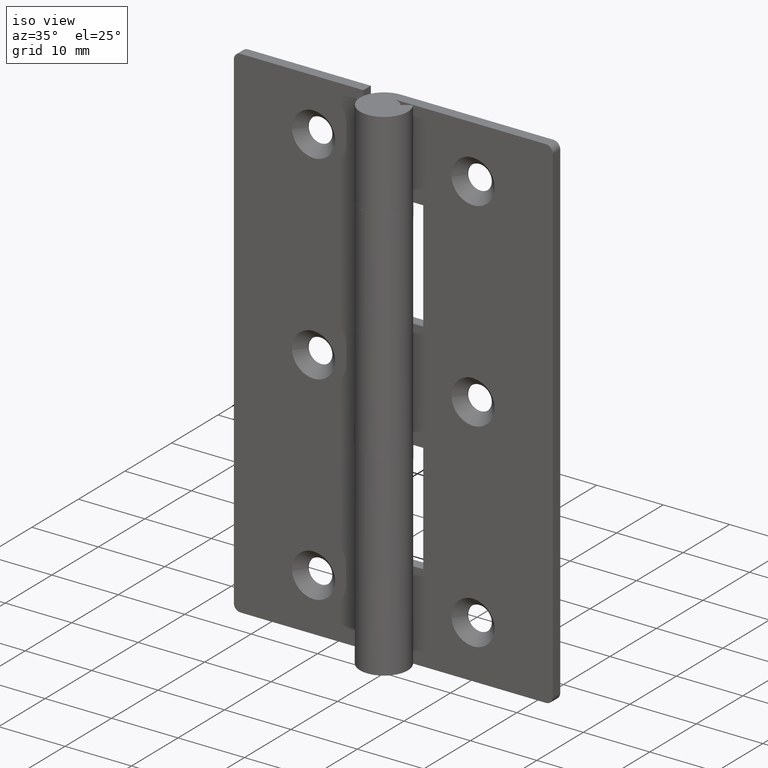
[diagram: clean part render]
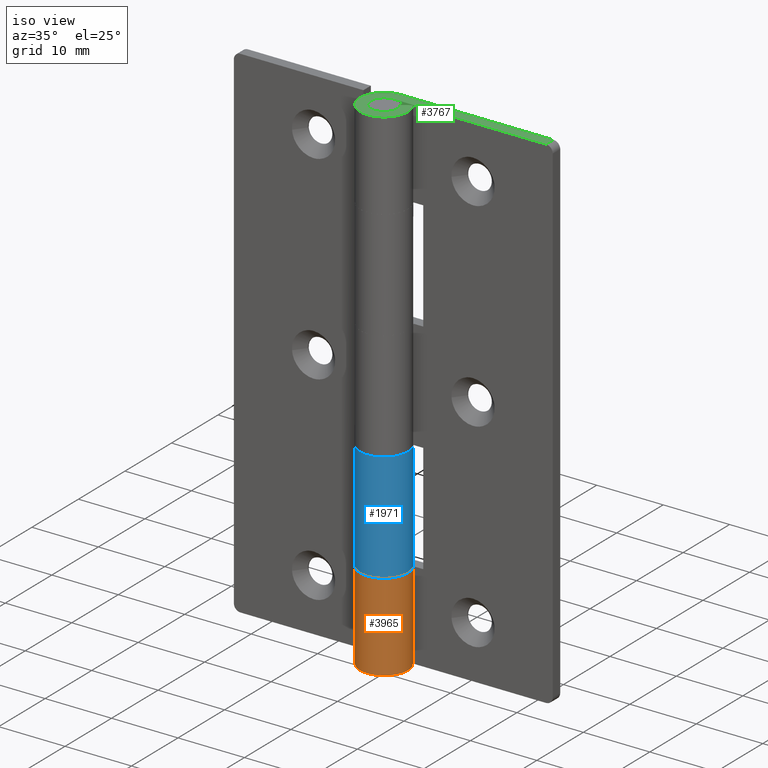
[diagram: same view with three faces highlighted in distinct colors, each labeled with its STEP entity id]
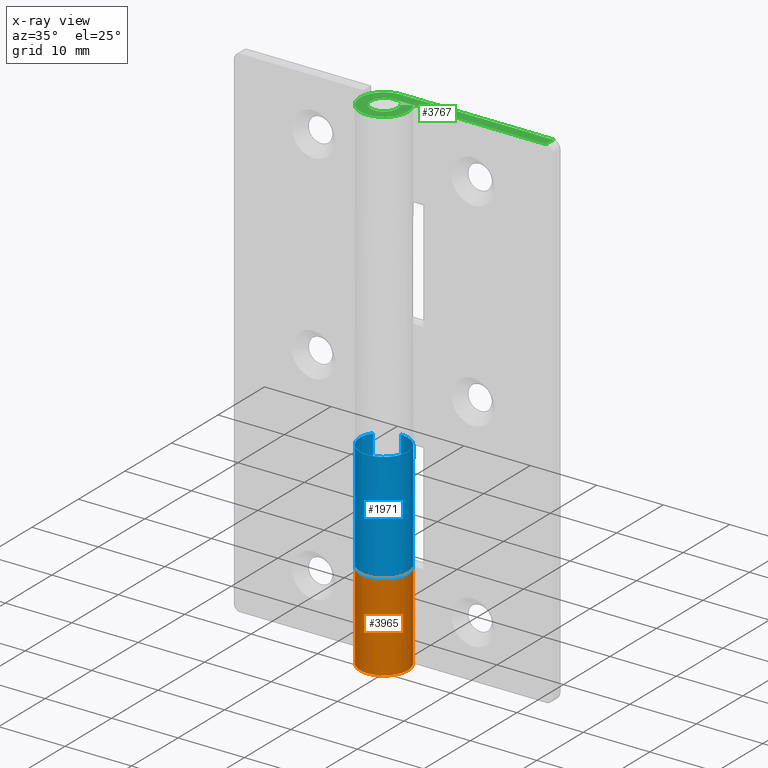
[diagram: x-ray of the same camera — body ghosted, the three highlighted faces saturated]
A machine part, iso view with three faces highlighted in distinct colors.
The next image is the same camera in x-ray (body ghosted, the three faces saturated) — at least one of them is partly hidden behind the body in this view.
Their STEP definitions:

[orange] entity #3965 — the highlighted face is a freeform B-spline surface patch.
#3338=CARTESIAN_POINT('',(0.0,3.599998000000000,13.250000000000000));
#3339=VERTEX_POINT('',#3338);
#3340=CARTESIAN_POINT('',(3.026136150274805,1.950000000000000,13.250000000000000));
#3341=VERTEX_POINT('',#3340);
#3342=CARTESIAN_POINT('',(0.0,3.599998000000000,13.250000000000000));
#3343=CARTESIAN_POINT('',(-2.797445801786442,3.599996574839753,13.250000000000005));
#3344=CARTESIAN_POINT('',(-3.488445646206987,0.889236523647995,13.250000000000000));
#3345=CARTESIAN_POINT('',(-4.179445490627532,-1.821523527543762,13.250000000000005));
#3346=CARTESIAN_POINT('',(-1.723368793961409,-3.160697125855820,13.250000000000000));
#3347=CARTESIAN_POINT('',(0.732707902704714,-4.499870724167879,13.250000000000005));
#3348=CARTESIAN_POINT('',(2.637063597806921,-2.450691853562209,13.250000000000000));
#3349=CARTESIAN_POINT('',(4.541419292909128,-0.401512982956539,13.250000000000005));
#3350=CARTESIAN_POINT('',(3.026136150274805,1.950000000000000,13.250000000000000));
#3358=(BOUNDED_CURVE()B_SPLINE_CURVE(2,(#3342,#3343,#3344,#3345,#3346,#3347,#3348,#3349,#3350),.UNSPECIFIED.,.F.,.U.)B_SPLINE_CURVE_WITH_KNOTS((3,2,2,2,3),(0.0,0.250000000000000,0.500000000000000,0.750000000000000,1.0),.UNSPECIFIED.)CURVE()GEOMETRIC_REPRESENTATION_ITEM()RATIONAL_B_SPLINE_CURVE((1.0,0.789623639943024,1.0,0.789623639943024,1.0,0.789623639943024,1.0,0.789623639943024,1.0))REPRESENTATION_ITEM(''));
#3359=EDGE_CURVE('',#3339,#3341,#3358,.T.);
#3403=CARTESIAN_POINT('',(0.003794732666214,3.599998000000000,13.250000000000000));
#3404=VERTEX_POINT('',#3403);
#3410=CARTESIAN_POINT('',(0.0,3.599998000000000,13.250000000000000));
#3411=CARTESIAN_POINT('',(0.003794732666214,3.599998000000000,13.250000000000000));
#3412=QUASI_UNIFORM_CURVE('',1,(#3410,#3411),.UNSPECIFIED.,.F.,.U.);
#3413=EDGE_CURVE('',#3339,#3404,#3412,.T.);
#3633=CARTESIAN_POINT('',(0.003794732666213,3.599998000000000,0.0));
#3634=VERTEX_POINT('',#3633);
#3669=CARTESIAN_POINT('',(3.026136150274805,1.950000000000000,0.0));
#3670=VERTEX_POINT('',#3669);
#3676=CARTESIAN_POINT('',(3.026136150274802,1.950000000000000,0.0));
#3677=CARTESIAN_POINT('',(4.541831416596925,-0.402153968316802,0.0));
#3678=CARTESIAN_POINT('',(2.636417691941326,-2.451387719969808,0.0));
#3679=CARTESIAN_POINT('',(0.731003967285728,-4.500621471622814,0.0));
#3680=CARTESIAN_POINT('',(-1.725034387729974,-3.159787391763736,0.0));
#3681=CARTESIAN_POINT('',(-4.181072742745673,-1.818953311904659,0.0));
#3682=CARTESIAN_POINT('',(-3.487741550518990,0.891997128237189,0.0));
#3683=CARTESIAN_POINT('',(-2.794410358292305,3.602947568379042,0.0));
#3684=CARTESIAN_POINT('',(0.003794732666212,3.599997999999999,0.0));
#3692=(BOUNDED_CURVE()B_SPLINE_CURVE(2,(#3676,#3677,#3678,#3679,#3680,#3681,#3682,#3683,#3684),.UNSPECIFIED.,.F.,.U.)B_SPLINE_CURVE_WITH_KNOTS((3,2,2,2,3),(0.0,0.250000000000000,0.500000000000000,0.750000000000000,1.0),.UNSPECIFIED.)CURVE()GEOMETRIC_REPRESENTATION_ITEM()RATIONAL_B_SPLINE_CURVE((1.0,0.789542785308570,1.0,0.789542785308570,1.0,0.789542785308570,1.0,0.789542785308570,1.0))REPRESENTATION_ITEM(''));
#3693=EDGE_CURVE('',#3670,#3634,#3692,.T.);
#3928=CARTESIAN_POINT('',(0.035210098515494,3.599827808237849,13.581250000000001));
#3929=CARTESIAN_POINT('',(0.035210098515494,3.599827808237849,-0.339531250000000));
#3930=CARTESIAN_POINT('',(-4.410207025893232,3.643308658775951,13.581250000000002));
#3931=CARTESIAN_POINT('',(-4.410207025893232,3.643308658775951,-0.339531250000000));
#3932=CARTESIAN_POINT('',(-3.528483524798904,-0.714005612878988,13.581250000000001));
#3933=CARTESIAN_POINT('',(-3.528483524798904,-0.714005612878988,-0.339531250000000));
#3934=CARTESIAN_POINT('',(-2.646760023704576,-5.071319884533927,13.581250000000002));
#3935=CARTESIAN_POINT('',(-2.646760023704576,-5.071319884533927,-0.339531250000000));
#3936=CARTESIAN_POINT('',(1.432015852811598,-3.302927579783769,13.581250000000001));
#3937=CARTESIAN_POINT('',(1.432015852811598,-3.302927579783769,-0.339531250000000));
#3938=CARTESIAN_POINT('',(5.510791729327772,-1.534535275033610,13.581250000000002));
#3939=CARTESIAN_POINT('',(5.510791729327772,-1.534535275033610,-0.339531250000000));
#3940=CARTESIAN_POINT('',(2.933017850327115,2.087440128401891,13.581250000000001));
#3941=CARTESIAN_POINT('',(2.933017850327115,2.087440128401891,-0.339531250000000));
#3949=(BOUNDED_SURFACE()B_SPLINE_SURFACE(1,2,((#3928,#3930,#3932,#3934,#3936,#3938,#3940),(#3929,#3931,#3933,#3935,#3937,#3939,#3941)),.UNSPECIFIED.,.F.,.F.,.U.)B_SPLINE_SURFACE_WITH_KNOTS((2,2),(3,2,2,3),(0.0,13.920781249999999),(0.0,6.868447670853503,13.736895341707010,20.605343012560510),.UNSPECIFIED.)GEOMETRIC_REPRESENTATION_ITEM()RATIONAL_B_SPLINE_SURFACE(((1.0,0.629320391049838,1.0,0.629320391049838,1.0,0.629320391049838,1.0),(1.0,0.629320391049838,1.0,0.629320391049838,1.0,0.629320391049838,1.0)))REPRESENTATION_ITEM('')SURFACE());
#3950=ORIENTED_EDGE('',*,*,#3413,.T.);
#3951=CARTESIAN_POINT('',(0.003794732666214,3.599998000000000,13.250000000000000));
#3952=CARTESIAN_POINT('',(0.003794732666213,3.599998000000000,0.0));
#3953=QUASI_UNIFORM_CURVE('',1,(#3951,#3952),.UNSPECIFIED.,.F.,.U.);
#3954=EDGE_CURVE('',#3404,#3634,#3953,.T.);
#3955=ORIENTED_EDGE('',*,*,#3954,.T.);
#3956=ORIENTED_EDGE('',*,*,#3693,.F.);
#3957=CARTESIAN_POINT('',(3.026136150274805,1.950000000000000,13.250000000000000));
#3958=CARTESIAN_POINT('',(3.026136150274805,1.950000000000000,0.0));
#3959=QUASI_UNIFORM_CURVE('',1,(#3957,#3958),.UNSPECIFIED.,.F.,.U.);
#3960=EDGE_CURVE('',#3341,#3670,#3959,.T.);
#3961=ORIENTED_EDGE('',*,*,#3960,.F.);
#3962=ORIENTED_EDGE('',*,*,#3359,.F.);
#3963=EDGE_LOOP('',(#3950,#3955,#3956,#3961,#3962));
#3964=FACE_OUTER_BOUND('',#3963,.T.);
#3965=ADVANCED_FACE('',(#3964),#3949,.T.);

[blue] entity #1971 — the highlighted face is a freeform B-spline surface patch.
#1429=CARTESIAN_POINT('',(-3.026136150274800,1.950000000000000,29.750000000000000));
#1430=VERTEX_POINT('',#1429);
#1436=CARTESIAN_POINT('',(0.003794732666213,3.599998000000000,29.750000000000000));
#1437=VERTEX_POINT('',#1436);
#1438=CARTESIAN_POINT('',(-3.026136150274802,1.950000000000000,29.750000000000000));
#1439=CARTESIAN_POINT('',(-4.541007253605513,-0.400874978869609,29.749999999999996));
#1440=CARTESIAN_POINT('',(-2.637709320543081,-2.449997865370531,29.750000000000000));
#1441=CARTESIAN_POINT('',(-0.734411387480650,-4.499120751871452,29.749999999999996));
#1442=CARTESIAN_POINT('',(1.721702721479254,-3.161603981976701,29.750000000000000));
#1443=CARTESIAN_POINT('',(4.177816830439160,-1.824087212081949,29.749999999999996));
#1444=CARTESIAN_POINT('',(3.489147561616365,0.886481411686999,29.750000000000000));
#1445=CARTESIAN_POINT('',(2.800478292793572,3.597050035455940,29.749999999999996));
#1446=CARTESIAN_POINT('',(0.003794732666215,3.599997999999999,29.750000000000000));
#1454=(BOUNDED_CURVE()B_SPLINE_CURVE(2,(#1438,#1439,#1440,#1441,#1442,#1443,#1444,#1445,#1446),.UNSPECIFIED.,.F.,.U.)B_SPLINE_CURVE_WITH_KNOTS((3,2,2,2,3),(0.0,0.250000000000000,0.500000000000000,0.750000000000000,1.0),.UNSPECIFIED.)CURVE()GEOMETRIC_REPRESENTATION_ITEM()RATIONAL_B_SPLINE_CURVE((1.0,0.789704480868732,1.0,0.789704480868732,1.0,0.789704480868732,1.0,0.789704480868732,1.0))REPRESENTATION_ITEM(''));
#1455=EDGE_CURVE('',#1430,#1437,#1454,.T.);
#1619=CARTESIAN_POINT('',(0.003794732666213,3.599998000000000,13.250000000000000));
#1620=VERTEX_POINT('',#1619);
#1626=CARTESIAN_POINT('',(-3.026136150274800,1.950000000000000,13.250000000000000));
#1627=VERTEX_POINT('',#1626);
#1628=CARTESIAN_POINT('',(0.003794732666213,3.599997999999999,13.250000000000000));
#1629=CARTESIAN_POINT('',(2.800478292793572,3.597050035455943,13.249999999999998));
#1630=CARTESIAN_POINT('',(3.489147561616365,0.886481411686998,13.250000000000000));
#1631=CARTESIAN_POINT('',(4.177816830439160,-1.824087212081947,13.249999999999998));
#1632=CARTESIAN_POINT('',(1.721702721479256,-3.161603981976700,13.250000000000000));
#1633=CARTESIAN_POINT('',(-0.734411387480650,-4.499120751871453,13.249999999999998));
#1634=CARTESIAN_POINT('',(-2.637709320543082,-2.449997865370530,13.250000000000000));
#1635=CARTESIAN_POINT('',(-4.541007253605512,-0.400874978869609,13.249999999999998));
#1636=CARTESIAN_POINT('',(-3.026136150274803,1.949999999999999,13.250000000000000));
#1644=(BOUNDED_CURVE()B_SPLINE_CURVE(2,(#1628,#1629,#1630,#1631,#1632,#1633,#1634,#1635,#1636),.UNSPECIFIED.,.F.,.U.)B_SPLINE_CURVE_WITH_KNOTS((3,2,2,2,3),(0.0,0.250000000000000,0.500000000000000,0.750000000000000,1.0),.UNSPECIFIED.)CURVE()GEOMETRIC_REPRESENTATION_ITEM()RATIONAL_B_SPLINE_CURVE((1.0,0.789704480868732,1.0,0.789704480868732,1.0,0.789704480868732,1.0,0.789704480868732,1.0))REPRESENTATION_ITEM(''));
#1645=EDGE_CURVE('',#1620,#1627,#1644,.T.);
#1871=CARTESIAN_POINT('',(-3.026136150274800,1.950000000000000,29.750000000000000));
#1872=CARTESIAN_POINT('',(-3.026136150274800,1.950000000000000,13.250000000000000));
#1873=QUASI_UNIFORM_CURVE('',1,(#1871,#1872),.UNSPECIFIED.,.F.,.U.);
#1874=EDGE_CURVE('',#1430,#1627,#1873,.T.);
#1939=CARTESIAN_POINT('',(-2.964703270537271,2.042188658685969,30.162500000000009));
#1940=CARTESIAN_POINT('',(-2.964703270537271,2.042188658685969,12.827187500000001));
#1941=CARTESIAN_POINT('',(-5.532086281403728,-1.684954167547918,30.162500000000001));
#1942=CARTESIAN_POINT('',(-5.532086281403728,-1.684954167547918,12.827187499999997));
#1943=CARTESIAN_POINT('',(-1.322934369143455,-3.348110609722892,30.162500000000009));
#1944=CARTESIAN_POINT('',(-1.322934369143455,-3.348110609722892,12.827187500000001));
#1945=CARTESIAN_POINT('',(2.886217543116818,-5.011267051897866,30.162500000000001));
#1946=CARTESIAN_POINT('',(2.886217543116818,-5.011267051897866,12.827187499999997));
#1947=CARTESIAN_POINT('',(3.559894232870384,-0.535866635251876,30.162500000000009));
#1948=CARTESIAN_POINT('',(3.559894232870384,-0.535866635251876,12.827187500000001));
#1949=CARTESIAN_POINT('',(4.233570922623950,3.939533781394115,30.162500000000001));
#1950=CARTESIAN_POINT('',(4.233570922623950,3.939533781394115,12.827187499999997));
#1951=CARTESIAN_POINT('',(-0.278669552930222,3.589198138898111,30.162500000000009));
#1952=CARTESIAN_POINT('',(-0.278669552930222,3.589198138898111,12.827187500000001));
#1960=(BOUNDED_SURFACE()B_SPLINE_SURFACE(1,2,((#1939,#1941,#1943,#1945,#1947,#1949,#1951),(#1940,#1942,#1944,#1946,#1948,#1950,#1952)),.UNSPECIFIED.,.F.,.F.,.U.)B_SPLINE_SURFACE_WITH_KNOTS((2,2),(3,2,2,3),(0.0,17.335312500000011),(0.0,6.945735467773014,13.891470935546030,20.837206403319041),.UNSPECIFIED.)GEOMETRIC_REPRESENTATION_ITEM()RATIONAL_B_SPLINE_SURFACE(((1.0,0.622514636637620,1.0,0.622514636637620,1.0,0.622514636637620,1.0),(1.0,0.622514636637620,1.0,0.622514636637620,1.0,0.622514636637620,1.0)))REPRESENTATION_ITEM('')SURFACE());
#1961=CARTESIAN_POINT('',(0.003794732666213,3.599998000000000,29.750000000000000));
#1962=CARTESIAN_POINT('',(0.003794732666213,3.599998000000000,13.250000000000000));
#1963=QUASI_UNIFORM_CURVE('',1,(#1961,#1962),.UNSPECIFIED.,.F.,.U.);
#1964=EDGE_CURVE('',#1437,#1620,#1963,.T.);
#1965=ORIENTED_EDGE('',*,*,#1964,.F.);
#1966=ORIENTED_EDGE('',*,*,#1455,.F.);
#1967=ORIENTED_EDGE('',*,*,#1874,.T.);
#1968=ORIENTED_EDGE('',*,*,#1645,.F.);
#1969=EDGE_LOOP('',(#1965,#1966,#1967,#1968));
#1970=FACE_OUTER_BOUND('',#1969,.T.);
#1971=ADVANCED_FACE('',(#1970),#1960,.T.);

[green] entity #3767 — the highlighted face is a freeform B-spline surface patch.
#3142=CARTESIAN_POINT('',(23.0,2.0,76.000007999999994));
#3143=VERTEX_POINT('',#3142);
#3164=CARTESIAN_POINT('',(23.0,3.599998000000000,76.000007999999994));
#3165=VERTEX_POINT('',#3164);
#3179=CARTESIAN_POINT('',(23.0,2.0,76.000007999999994));
#3180=CARTESIAN_POINT('',(23.0,3.599998000000000,76.000007999999994));
#3181=QUASI_UNIFORM_CURVE('',1,(#3179,#3180),.UNSPECIFIED.,.F.,.U.);
#3182=EDGE_CURVE('',#3143,#3165,#3181,.T.);
#3698=CARTESIAN_POINT('',(-4.928304616404461,-3.958065244755454,76.000007999999994));
#3699=CARTESIAN_POINT('',(24.328653281708299,-3.958065244755454,76.000007999999994));
#3700=CARTESIAN_POINT('',(-4.928304616404461,3.959563167718931,76.000007999999994));
#3701=CARTESIAN_POINT('',(24.328653281708299,3.959563167718931,76.000007999999994));
#3702=B_SPLINE_SURFACE_WITH_KNOTS('',1,1,((#3698,#3700),(#3699,#3701)),.UNSPECIFIED.,.F.,.F.,.U.,(2,2),(2,2),(0.0,29.256957898112759),(0.0,7.917628412474385),.UNSPECIFIED.);
#3703=CARTESIAN_POINT('',(-3.673819E-016,2.0,76.000007999999994));
#3704=VERTEX_POINT('',#3703);
#3705=CARTESIAN_POINT('',(-3.673819E-016,2.0,76.000007999999994));
#3706=CARTESIAN_POINT('',(23.0,2.0,76.000007999999994));
#3707=QUASI_UNIFORM_CURVE('',1,(#3705,#3706),.UNSPECIFIED.,.F.,.U.);
#3708=EDGE_CURVE('',#3704,#3143,#3707,.T.);
#3709=ORIENTED_EDGE('',*,*,#3708,.T.);
#3710=ORIENTED_EDGE('',*,*,#3182,.T.);
#3711=CARTESIAN_POINT('',(0.003794732666213,3.599998000000000,76.000007999999994));
#3712=VERTEX_POINT('',#3711);
#3713=CARTESIAN_POINT('',(23.0,3.599998000000000,76.000007999999994));
#3714=CARTESIAN_POINT('',(0.003794732666213,3.599998000000000,76.000007999999994));
#3715=QUASI_UNIFORM_CURVE('',1,(#3713,#3714),.UNSPECIFIED.,.F.,.U.);
#3716=EDGE_CURVE('',#3165,#3712,#3715,.T.);
#3717=ORIENTED_EDGE('',*,*,#3716,.T.);
#3718=CARTESIAN_POINT('',(3.026136150274805,1.950000000000000,76.000007999999994));
#3719=VERTEX_POINT('',#3718);
#3720=CARTESIAN_POINT('',(3.026136150274802,1.950000000000000,76.000007999999994));
#3721=CARTESIAN_POINT('',(4.541831416596925,-0.402153968316802,76.000007999999994));
#3722=CARTESIAN_POINT('',(2.636417691941326,-2.451387719969808,76.000007999999994));
#3723=CARTESIAN_POINT('',(0.731003967285728,-4.500621471622814,76.000007999999994));
#3724=CARTESIAN_POINT('',(-1.725034387729974,-3.159787391763736,76.000007999999994));
#3725=CARTESIAN_POINT('',(-4.181072742745673,-1.818953311904659,76.000007999999994));
#3726=CARTESIAN_POINT('',(-3.487741550518990,0.891997128237189,76.000007999999994));
#3727=CARTESIAN_POINT('',(-2.794410358292305,3.602947568379042,76.000007999999994));
#3728=CARTESIAN_POINT('',(0.003794732666212,3.599997999999999,76.000007999999994));
#3736=(BOUNDED_CURVE()B_SPLINE_CURVE(2,(#3720,#3721,#3722,#3723,#3724,#3725,#3726,#3727,#3728),.UNSPECIFIED.,.F.,.U.)B_SPLINE_CURVE_WITH_KNOTS((3,2,2,2,3),(0.0,0.250000000000000,0.500000000000000,0.750000000000000,1.0),.UNSPECIFIED.)CURVE()GEOMETRIC_REPRESENTATION_ITEM()RATIONAL_B_SPLINE_CURVE((1.0,0.789542785308570,1.0,0.789542785308570,1.0,0.789542785308570,1.0,0.789542785308570,1.0))REPRESENTATION_ITEM(''));
#3737=EDGE_CURVE('',#3719,#3712,#3736,.T.);
#3738=ORIENTED_EDGE('',*,*,#3737,.F.);
#3739=CARTESIAN_POINT('',(1.681186750152670,1.083333333333334,76.000007999999994));
#3740=VERTEX_POINT('',#3739);
#3741=CARTESIAN_POINT('',(3.026136150274805,1.950000000000000,76.000007999999994));
#3742=CARTESIAN_POINT('',(1.681186750152670,1.083333333333334,76.000007999999994));
#3743=QUASI_UNIFORM_CURVE('',1,(#3741,#3742),.UNSPECIFIED.,.F.,.U.);
#3744=EDGE_CURVE('',#3719,#3740,#3743,.T.);
#3745=ORIENTED_EDGE('',*,*,#3744,.T.);
#3746=CARTESIAN_POINT('',(1.681186750152668,1.083333333333334,76.000007999999994));
#3747=CARTESIAN_POINT('',(2.523010718282848,-0.223063560064881,76.000007999999994));
#3748=CARTESIAN_POINT('',(1.465035332114955,-1.361496043202044,76.000007999999994));
#3749=CARTESIAN_POINT('',(0.407059945947064,-2.499928526339208,76.000007999999994));
#3750=CARTESIAN_POINT('',(-0.957427107756338,-1.755942292142124,76.000007999999994));
#3751=CARTESIAN_POINT('',(-2.321914161459739,-1.011956057945040,76.000007999999994));
#3752=CARTESIAN_POINT('',(-1.938025359003882,0.494021971027480,76.000007999999994));
#3753=CARTESIAN_POINT('',(-1.554136556548025,2.000000000000000,76.000007999999994));
#3754=CARTESIAN_POINT('',(0.0,2.0,76.000007999999994));
#3762=(BOUNDED_CURVE()B_SPLINE_CURVE(2,(#3746,#3747,#3748,#3749,#3750,#3751,#3752,#3753,#3754),.UNSPECIFIED.,.F.,.U.)B_SPLINE_CURVE_WITH_KNOTS((3,2,2,2,3),(0.0,0.250000000000000,0.500000000000000,0.750000000000000,1.0),.UNSPECIFIED.)CURVE()GEOMETRIC_REPRESENTATION_ITEM()RATIONAL_B_SPLINE_CURVE((1.0,0.789623639943024,1.0,0.789623639943024,1.0,0.789623639943024,1.0,0.789623639943024,1.0))REPRESENTATION_ITEM(''));
#3763=EDGE_CURVE('',#3740,#3704,#3762,.T.);
#3764=ORIENTED_EDGE('',*,*,#3763,.T.);
#3765=EDGE_LOOP('',(#3709,#3710,#3717,#3738,#3745,#3764));
#3766=FACE_OUTER_BOUND('',#3765,.T.);
#3767=ADVANCED_FACE('',(#3766),#3702,.T.);